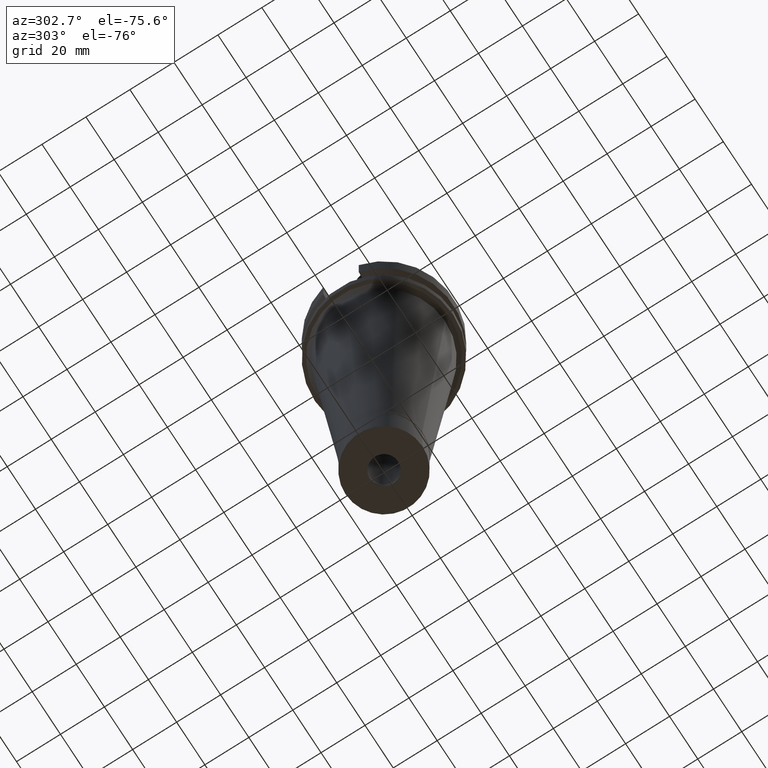
[diagram: clean part render]
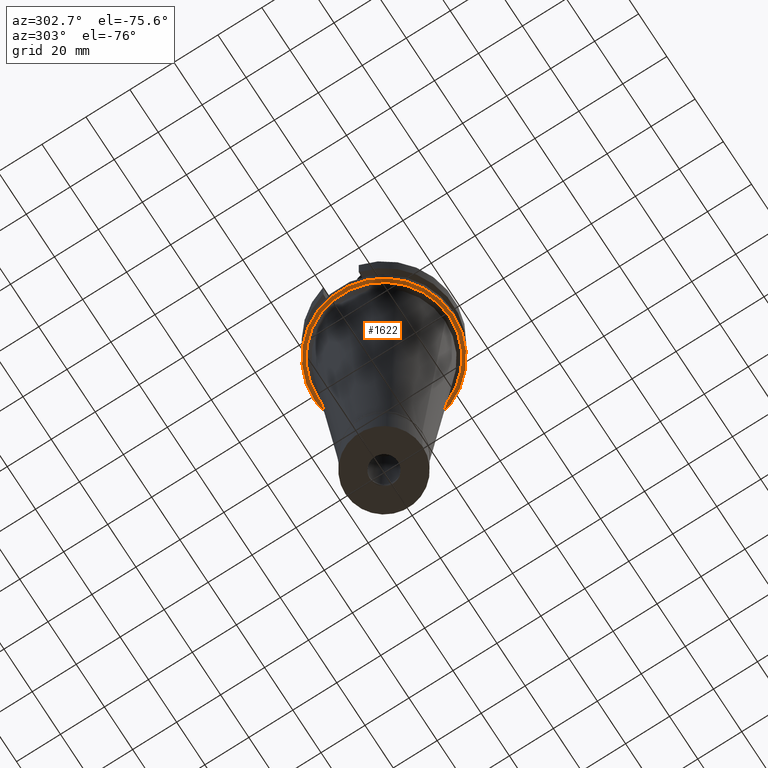
[diagram: same view with one face highlighted and labeled with its STEP entity id]
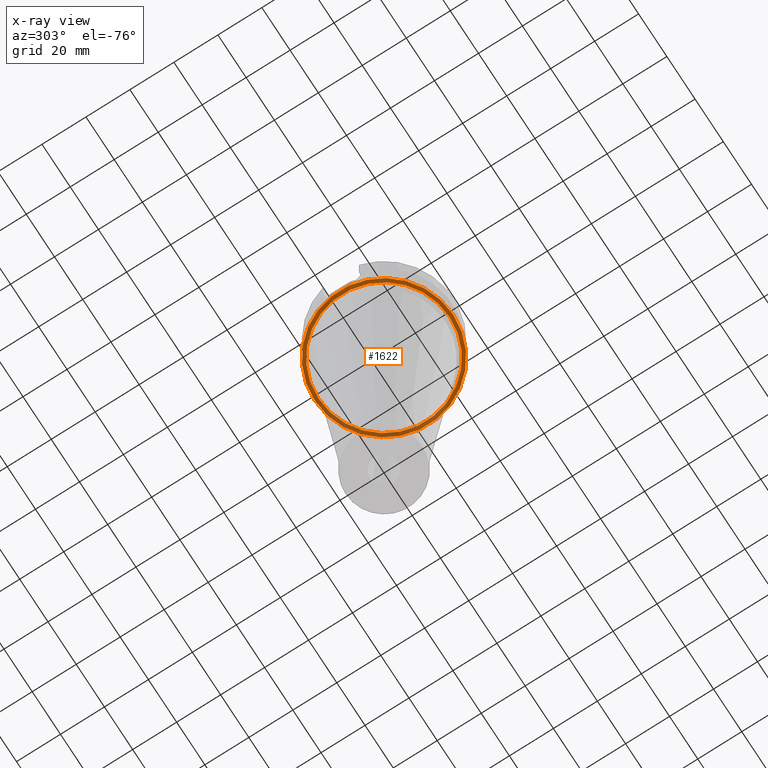
[diagram: x-ray of the same camera — body ghosted, the highlighted face saturated]
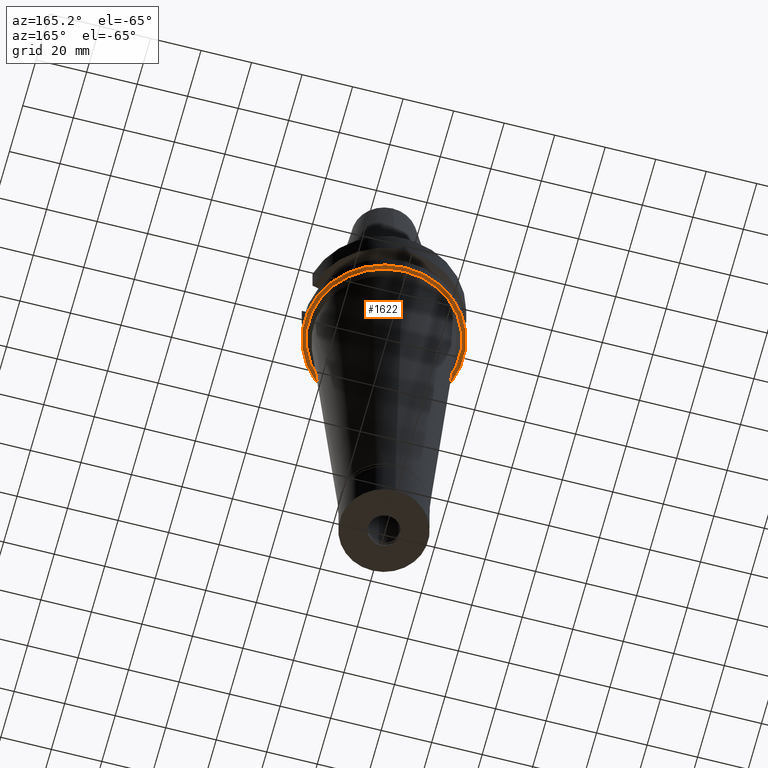
[diagram: same view with one face highlighted and labeled with its STEP entity id]
A machine part, auxiliary view. The second image highlights one B-rep face of the part: STEP entity #1622.
The next image is the same camera in x-ray: the body ghosted, the highlighted face saturated — about 28% of this face is hidden behind the body in this view.
A second angle (auxiliary view) of the same face is appended — the face is thin or edge-on in the first view.
In plain terms, the highlighted planar face has unit normal (0, 0, -1).
Its self-contained STEP definition (entity closure, byte-faithful):
#42 = DIRECTION ( 'NONE',  ( 0.0000000000000000000, 0.0000000000000000000, 1.000000000000000000 ) ) ;
#150 = DIRECTION ( 'NONE',  ( 0.0000000000000000000, 1.000000000000000000, 0.0000000000000000000 ) ) ;
#158 = CARTESIAN_POINT ( 'NONE',  ( 0.0000000000000000000, 0.0000000000000000000, -27.00000000000000000 ) ) ;
#191 = EDGE_LOOP ( 'NONE', ( #2396, #2151 ) ) ;
#267 = CARTESIAN_POINT ( 'NONE',  ( 0.0000000000000000000, 2.183973869259000036E-14, -27.00000000000000000 ) ) ;
#293 = AXIS2_PLACEMENT_3D ( 'NONE', #906, #2817, #1158 ) ;
#311 = EDGE_CURVE ( 'NONE', #1214, #2900, #590, .T. ) ;
#429 = DIRECTION ( 'NONE',  ( 0.0000000000000000000, 1.000000000000000000, 0.0000000000000000000 ) ) ;
#467 = VERTEX_POINT ( 'NONE', #821 ) ;
#507 = EDGE_CURVE ( 'NONE', #1102, #467, #1105, .T. ) ;
#570 = CARTESIAN_POINT ( 'NONE',  ( 0.0000000000000000000, -29.82819012406000070, -27.00000000000000000 ) ) ;
#590 = CIRCLE ( 'NONE', #293, 29.82819012406000070 ) ;
#641 = ORIENTED_EDGE ( 'NONE', *, *, #311, .F. ) ;
#667 = FACE_OUTER_BOUND ( 'NONE', #191, .T. ) ;
#821 = CARTESIAN_POINT ( 'NONE',  ( 0.0000000000000000000, 31.50000000000000000, -27.00000000000000000 ) ) ;
#906 = CARTESIAN_POINT ( 'NONE',  ( 0.0000000000000000000, 0.0000000000000000000, -27.00000000000000000 ) ) ;
#909 = DIRECTION ( 'NONE',  ( 0.0000000000000000000, 0.0000000000000000000, -1.000000000000000000 ) ) ;
#921 = FACE_BOUND ( 'NONE', #2088, .T. ) ;
#935 = ORIENTED_EDGE ( 'NONE', *, *, #1426, .F. ) ;
#996 = AXIS2_PLACEMENT_3D ( 'NONE', #158, #909, #2851 ) ;
#1009 = AXIS2_PLACEMENT_3D ( 'NONE', #3107, #1400, #1385 ) ;
#1097 = EDGE_CURVE ( 'NONE', #467, #1102, #1460, .T. ) ;
#1102 = VERTEX_POINT ( 'NONE', #2186 ) ;
#1104 = CARTESIAN_POINT ( 'NONE',  ( 0.0000000000000000000, 0.0000000000000000000, -27.00000000000000000 ) ) ;
#1105 = CIRCLE ( 'NONE', #1009, 31.50000000000000000 ) ;
#1158 = DIRECTION ( 'NONE',  ( 0.0000000000000000000, -1.000000000000000000, 0.0000000000000000000 ) ) ;
#1214 = VERTEX_POINT ( 'NONE', #570 ) ;
#1385 = DIRECTION ( 'NONE',  ( 0.0000000000000000000, -1.000000000000000000, 0.0000000000000000000 ) ) ;
#1400 = DIRECTION ( 'NONE',  ( 0.0000000000000000000, 0.0000000000000000000, 1.000000000000000000 ) ) ;
#1426 = EDGE_CURVE ( 'NONE', #2900, #1214, #2468, .T. ) ;
#1460 = CIRCLE ( 'NONE', #2064, 31.50000000000000000 ) ;
#1622 = ADVANCED_FACE ( 'NONE', ( #667, #921 ), #2820, .T. ) ;
#1818 = DIRECTION ( 'NONE',  ( 0.0000000000000000000, 0.0000000000000000000, -1.000000000000000000 ) ) ;
#2064 = AXIS2_PLACEMENT_3D ( 'NONE', #267, #42, #429 ) ;
#2088 = EDGE_LOOP ( 'NONE', ( #935, #641 ) ) ;
#2151 = ORIENTED_EDGE ( 'NONE', *, *, #507, .F. ) ;
#2186 = CARTESIAN_POINT ( 'NONE',  ( 0.0000000000000000000, -31.50000000000000000, -27.00000000000000000 ) ) ;
#2213 = CARTESIAN_POINT ( 'NONE',  ( 0.0000000000000000000, 29.82819012406000070, -27.00000000000000000 ) ) ;
#2396 = ORIENTED_EDGE ( 'NONE', *, *, #1097, .F. ) ;
#2468 = CIRCLE ( 'NONE', #2983, 29.82819012406000070 ) ;
#2817 = DIRECTION ( 'NONE',  ( 0.0000000000000000000, 0.0000000000000000000, -1.000000000000000000 ) ) ;
#2820 = PLANE ( 'NONE',  #996 ) ;
#2851 = DIRECTION ( 'NONE',  ( 0.0000000000000000000, -1.000000000000000000, 0.0000000000000000000 ) ) ;
#2900 = VERTEX_POINT ( 'NONE', #2213 ) ;
#2983 = AXIS2_PLACEMENT_3D ( 'NONE', #1104, #1818, #150 ) ;
#3107 = CARTESIAN_POINT ( 'NONE',  ( 0.0000000000000000000, 2.183973869259000036E-14, -27.00000000000000000 ) ) ;